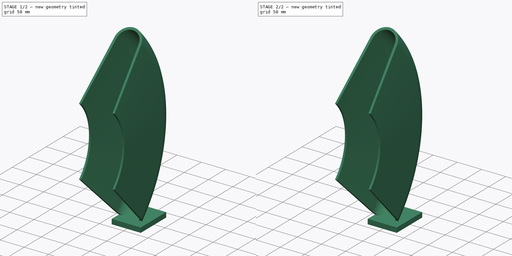
[diagram: build sequence overview — one tinted view per stage of 2, left to right]
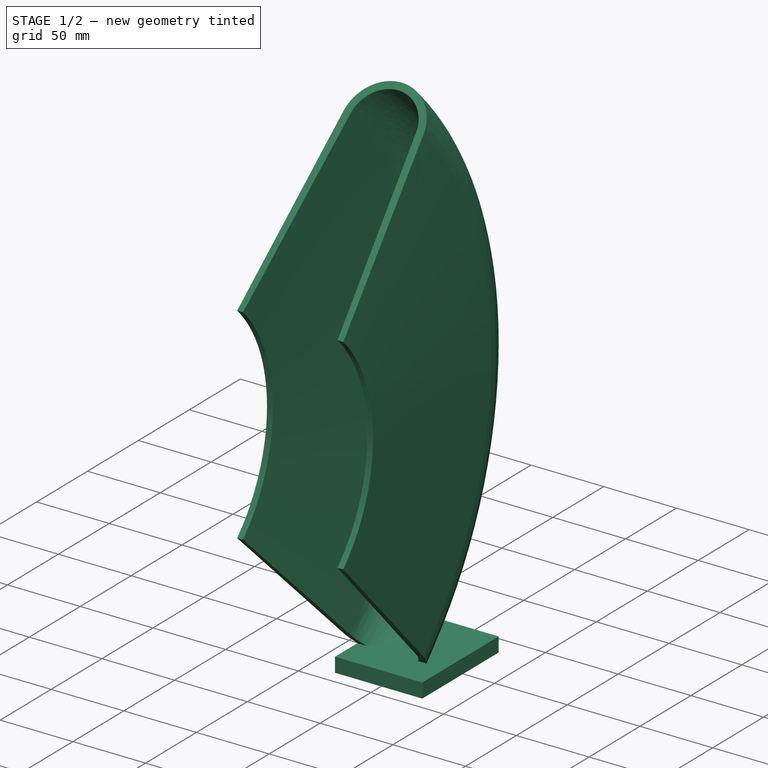
[diagram: stage 1 of 2 — iso view after this stage's code; geometry added in this stage tinted green]
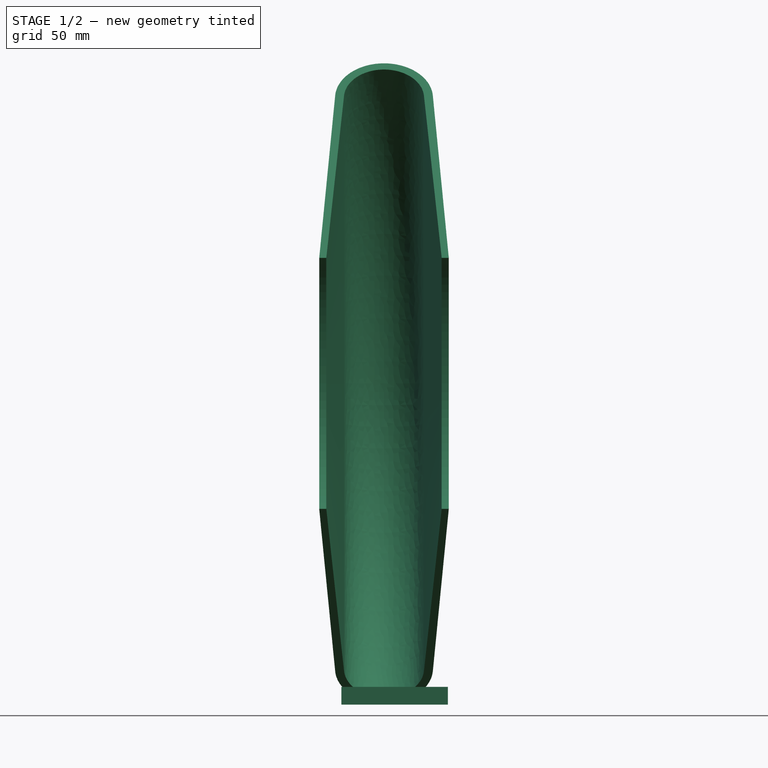
[diagram: stage 1 of 2 — front view after this stage's code; geometry added in this stage tinted green]
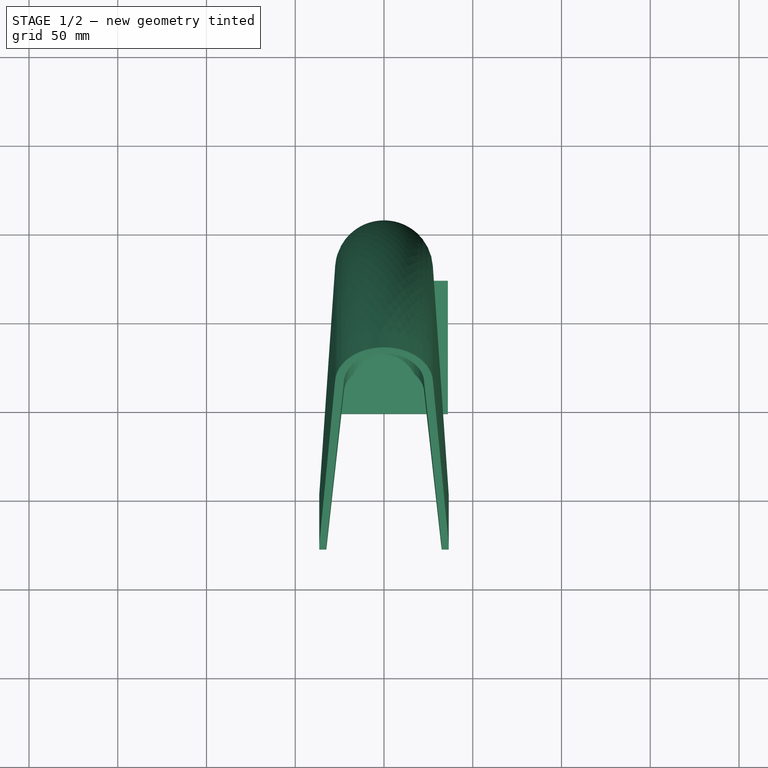
[diagram: stage 1 of 2 — top view after this stage's code; geometry added in this stage tinted green]
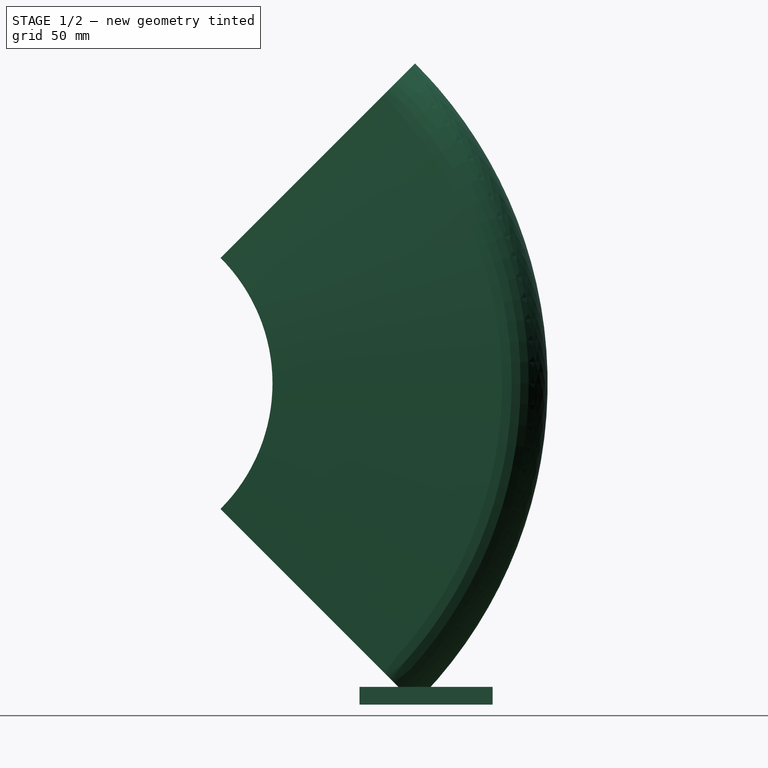
[diagram: stage 1 of 2 — right view after this stage's code; geometry added in this stage tinted green]
FCSTD DOCUMENT  (FreeCAD 0.19R)
Label: MiniMudguard
License: All rights reserved
LicenseURL: http://en.wikipedia.org/wiki/All_rights_reserved
objects: Sketcher::SketchObject×1, PartDesign::Revolution×1, PartDesign::Body×1, Part::Box×1, Part::MultiFuse×1
note: 6 computed .brp shape members not serialized (recipe doc carries the construction recipe); baked Part::Feature solids carry a one-line shape summary decoded from their .brp

FEATURE [Sketcher::SketchObject] Sketch
  FullyConstrained = false
  MapMode = 5
  Support = -> [XY_Plane]
  sketch-geometry (9):
    g0: LineSegment StartX=-38.02 StartY=255 StartZ=0 EndX=36.46 EndY=255 EndZ=0
    g1: ArcOfCircle CenterX=1e-15 CenterY=227.426 CenterZ=0 NormalX=0 NormalY=0 NormalZ=1 AngleXU=0 Radius=27.5737 StartAngle=0.0694168 EndAngle=3.07218
    g2: ArcOfCircle CenterX=0 CenterY=227.499 CenterZ=0 NormalX=0 NormalY=0 NormalZ=1 AngleXU=0 Radius=22.5673 StartAngle=0.0772218 EndAngle=3.06437
    g3: LineSegment StartX=-36.5 StartY=100 StartZ=0 EndX=-27.5073 EndY=229.339 EndZ=0
    g4: LineSegment StartX=-32.5 StartY=100 StartZ=0 EndX=-22.5 EndY=229.24 EndZ=0
    g5: LineSegment StartX=22.5 StartY=229.24 StartZ=0 EndX=32.5 EndY=100 EndZ=0
    g6: LineSegment StartX=-36.5 StartY=100 StartZ=0 EndX=-32.5 EndY=100 EndZ=0
    g7: LineSegment StartX=32.5 StartY=100 StartZ=0 EndX=36.5 EndY=100 EndZ=0
    g8: LineSegment StartX=36.5 StartY=100 StartZ=0 EndX=27.5073 EndY=229.339 EndZ=0
  constraints (23):
    c: Horizontal(g0)
    c: DistanceY(g0) = 255
    c: Tangent(g1,g0)
    c: Symmetric(g1,g1,g-2)
    c: Distance(g0) = 74.48
    c: DistanceX(g0) = 36.46
    c: Tangent(g3,g1) = 1.5708
    c: Coincident(g6,g3)
    c: Coincident(g6,g4)
    c: Distance(g6) = 4
    c: Tangent(g4,g2) = 1.5708
    c: Tangent(g5,g2) = 1.5708
    c: PointOnObject(g2,g-2)
    c: Coincident(g5,g7)
    c: Coincident(g7,g8)
    c: Coincident(g8,g1)
    c: Symmetric(g5,g4,g-2)
    c: Symmetric(g7,g3,g-2)
    c: Horizontal(g7)
    c: Distance(g5,g4) = 65
    c: Distance(g2,g2) = 45
    c: Distance(g1,g5) = 5
    c: DistanceY(g7) = 100
FEATURE [PartDesign::Revolution] Revolution
  Angle = 90
  Axis = (1,0,0)
  Base = (0,0,0)
  Midplane = true
  Profile = -> Sketch
  ReferenceAxis = -> Sketch [H_Axis]
FEATURE [PartDesign::Body] Body
  Group = -> [Sketch,Revolution]
  Origin = -> Origin
  Tip = -> Revolution
FEATURE [Part::Box] Box  label="Cube"
  AttacherType = Attacher::AttachEngine3D
  Height = 10
  Length = 60
  Placement = pos=(-24,149,-181) rot=(0,0,1;0rad)
  Width = 75
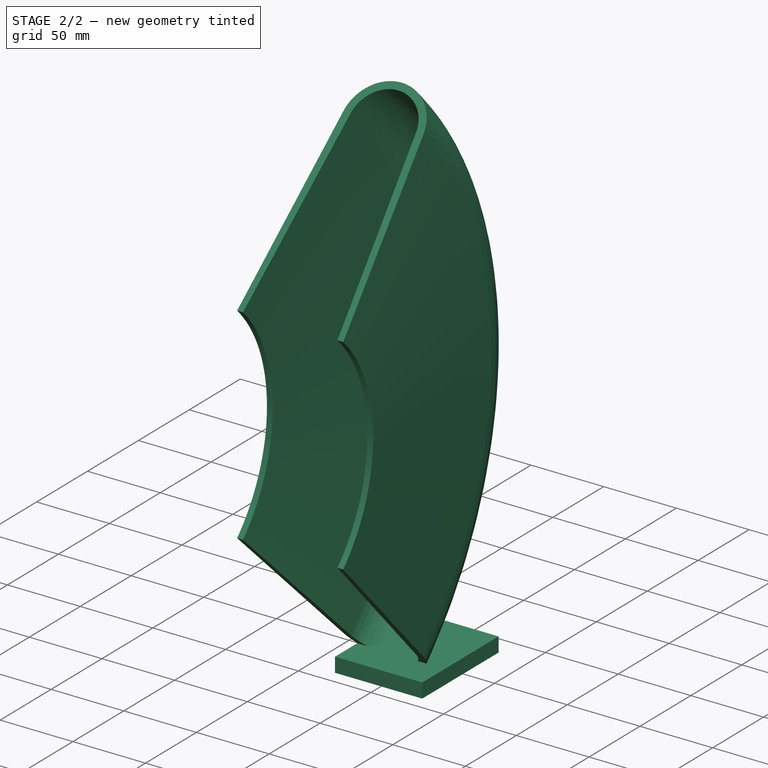
[diagram: stage 2 of 2 — iso view after this stage's code; geometry added in this stage tinted green]
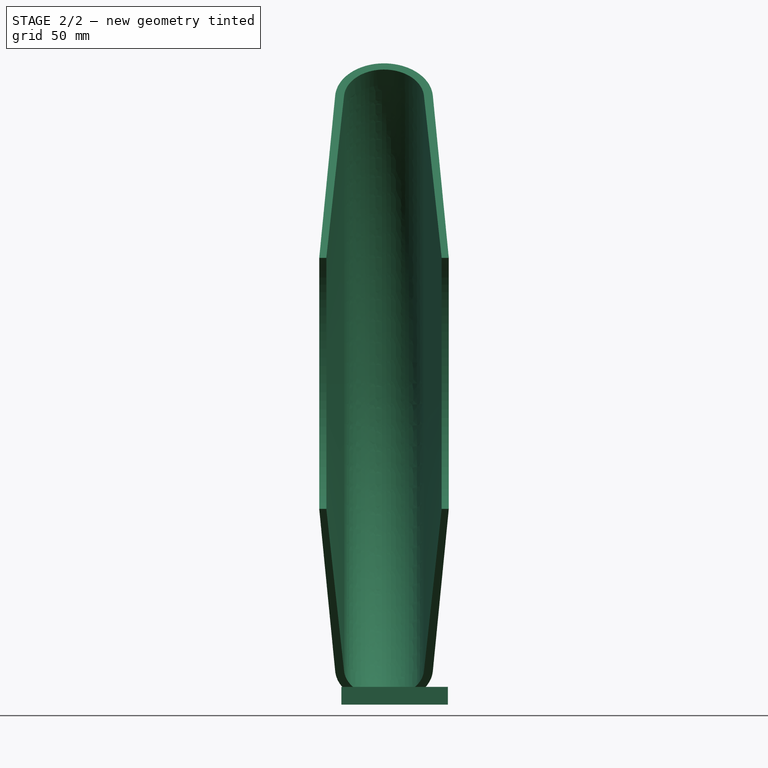
[diagram: stage 2 of 2 — front view after this stage's code; geometry added in this stage tinted green]
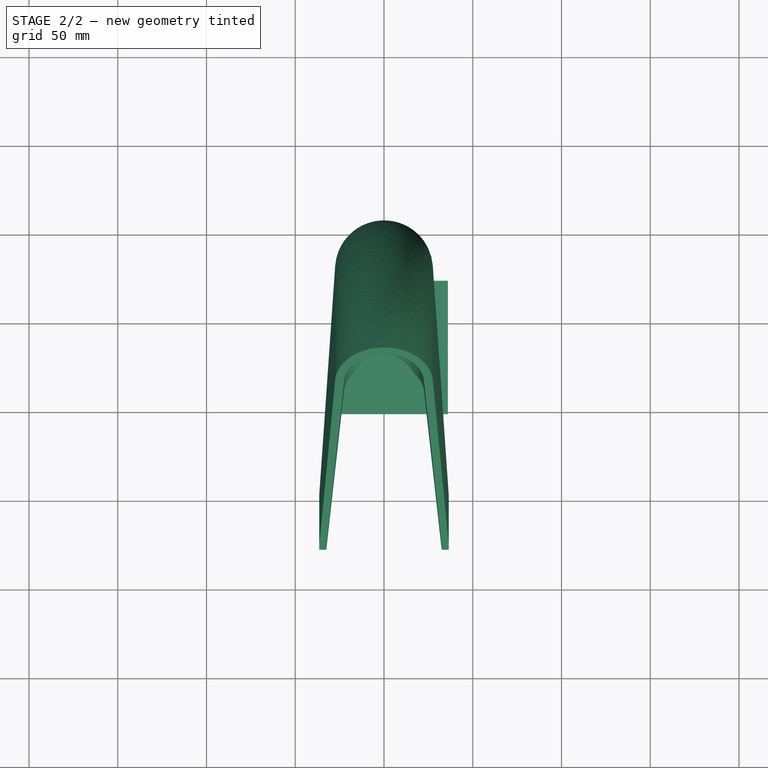
[diagram: stage 2 of 2 — top view after this stage's code; geometry added in this stage tinted green]
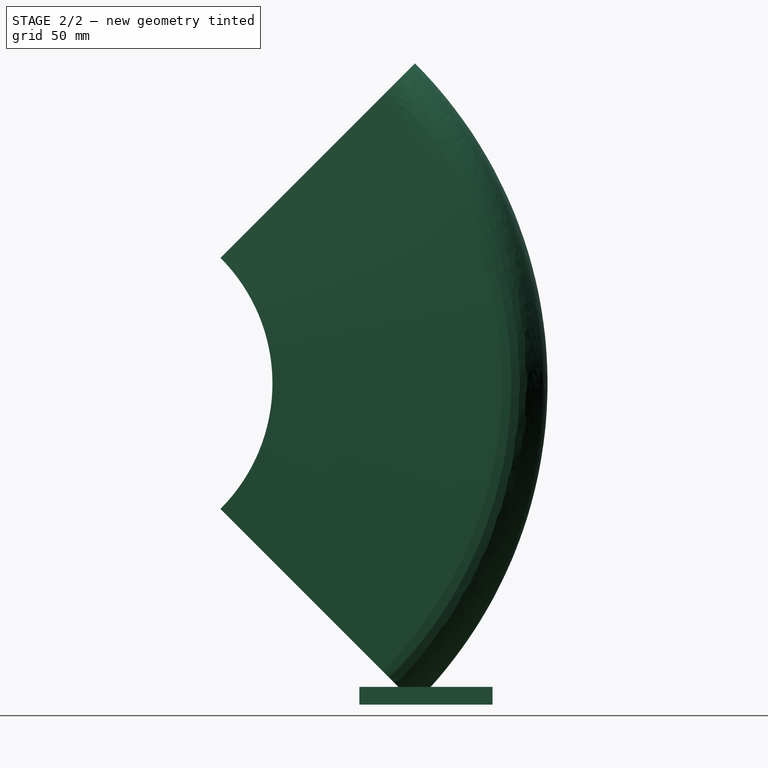
[diagram: stage 2 of 2 — right view after this stage's code; geometry added in this stage tinted green]
FEATURE [Part::MultiFuse] Fusion
  Shapes = -> [Box,Revolution]
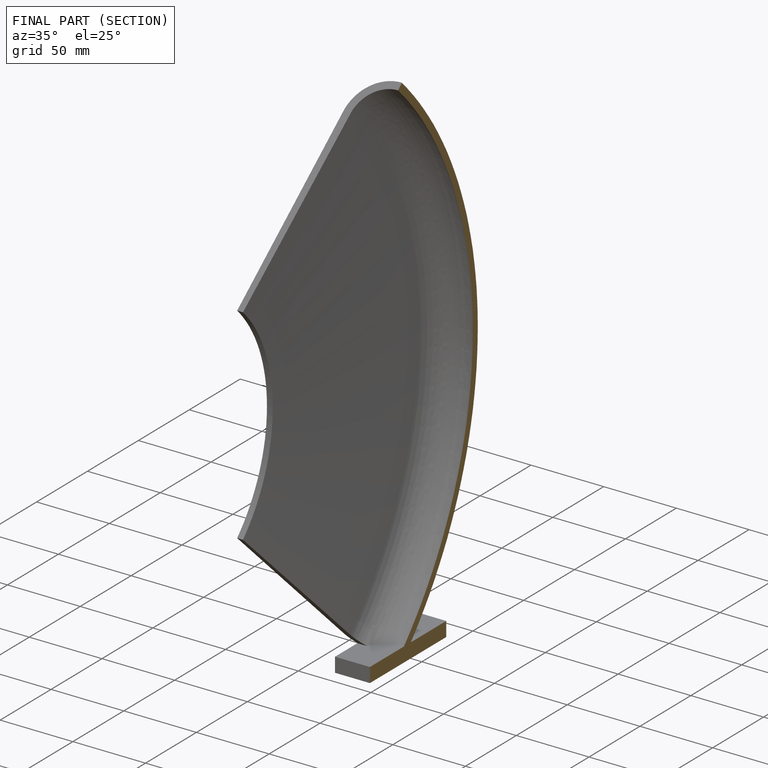
[diagram: finished part — half-section view (interior)]
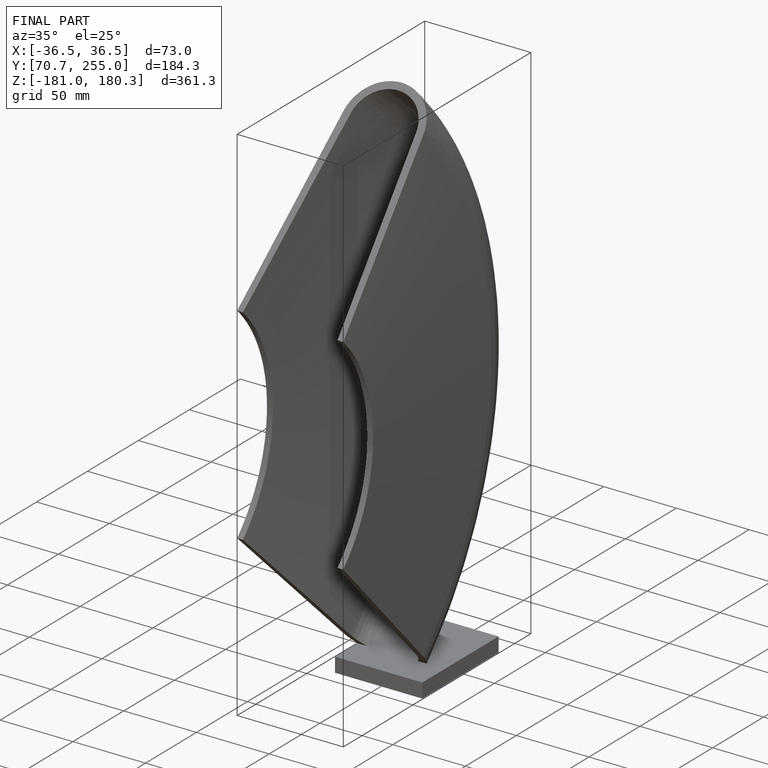
[diagram: finished part — iso view with bounding-box wireframe]
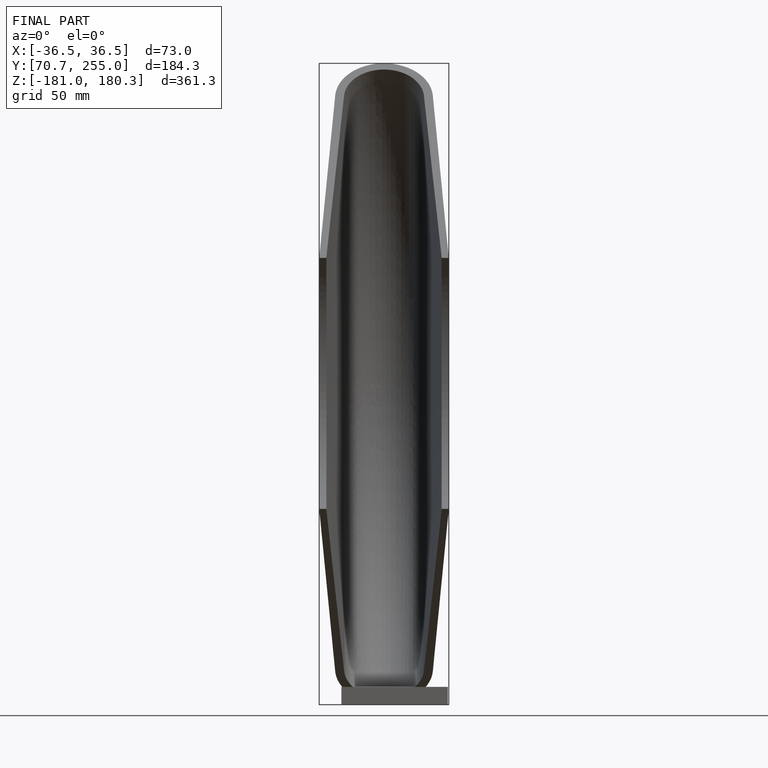
[diagram: finished part — front view with bounding-box wireframe]
